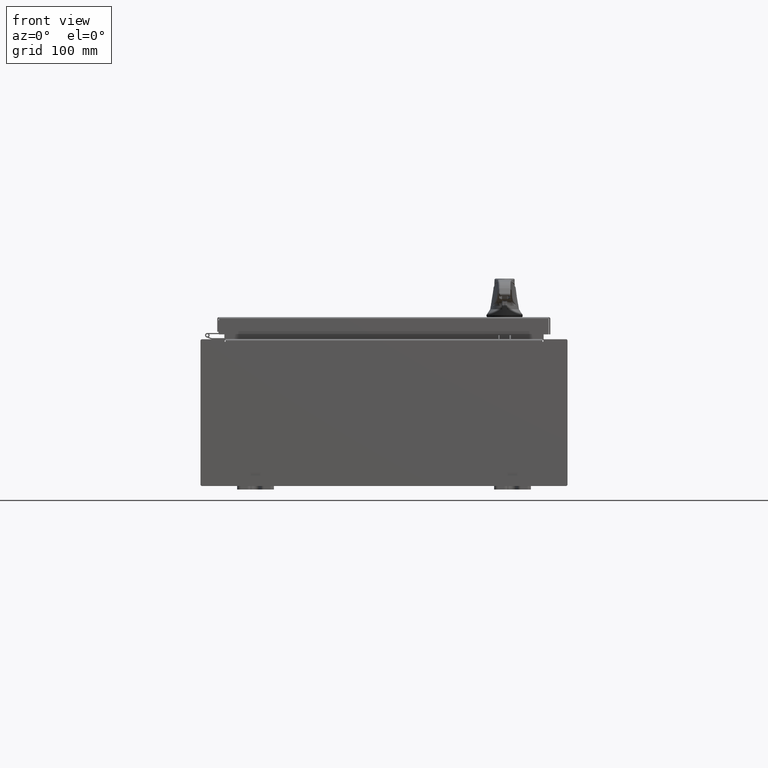
[diagram: clean part render]
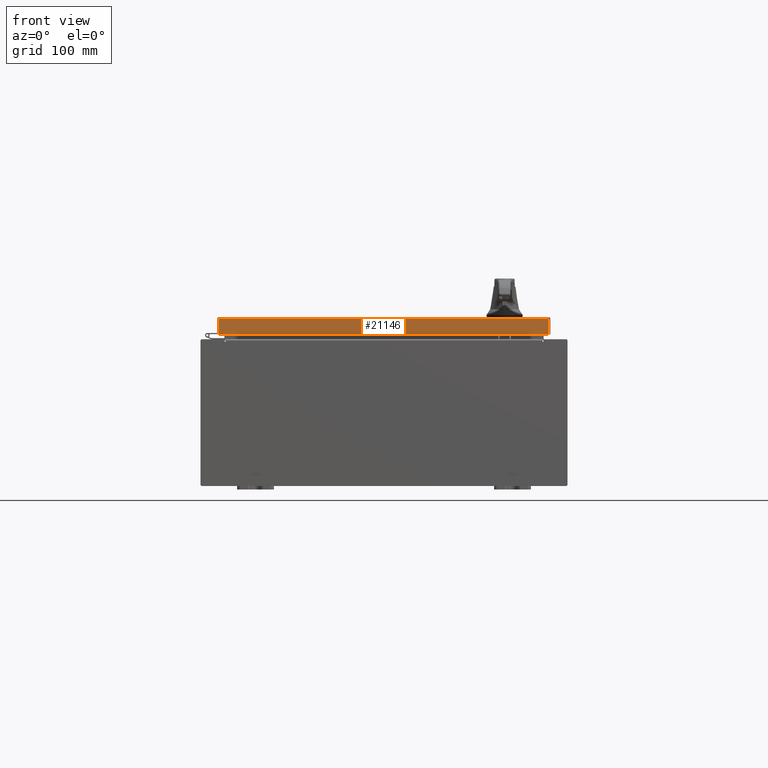
[diagram: same view with one face highlighted and labeled with its STEP entity id]
A machine part, front view. The second image highlights one B-rep face of the part: STEP entity #21146.
In plain terms, the highlighted planar face has unit normal (0, 1, -0).
Its self-contained STEP definition (entity closure, byte-faithful):
#1068 = DIRECTION ( 'NONE',  ( 1.000000000000000000, -1.203722403024567800E-016, -7.444398091725593800E-046 ) ) ;
#1636 = LINE ( 'NONE', #109436, #46887 ) ;
#1716 = EDGE_CURVE ( 'NONE', #67076, #49758, #1636, .T. ) ;
#7063 = CARTESIAN_POINT ( 'NONE',  ( -8.989157864376265300, -14.09400000000000100, -0.9376999999999976500 ) ) ;
#7913 = VECTOR ( 'NONE', #81834, 39.37007874015748100 ) ;
#9367 = AXIS2_PLACEMENT_3D ( 'NONE', #50401, #105012, #50799 ) ;
#9462 = CARTESIAN_POINT ( 'NONE',  ( 8.989157864376270600, -14.09400000000000300, -0.9376999999999997600 ) ) ;
#14542 = PLANE ( 'NONE',  #9367 ) ;
#17803 = VECTOR ( 'NONE', #64749, 39.37007874015748100 ) ;
#20748 = ORIENTED_EDGE ( 'NONE', *, *, #1716, .F. ) ;
#21146 = ADVANCED_FACE ( 'NONE', ( #108619 ), #14542, .F. ) ;
#21970 = EDGE_CURVE ( 'NONE', #49758, #71980, #41983, .T. ) ;
#28446 = ORIENTED_EDGE ( 'NONE', *, *, #21970, .F. ) ;
#34788 = LINE ( 'NONE', #63670, #7913 ) ;
#36708 = CARTESIAN_POINT ( 'NONE',  ( 9.078000000000001200, -14.09400000000000300, -0.9376999999999997600 ) ) ;
#41983 = LINE ( 'NONE', #80983, #87216 ) ;
#44617 = DIRECTION ( 'NONE',  ( 0.0000000000000000000, -2.532419924601866100E-015, -1.000000000000000000 ) ) ;
#46887 = VECTOR ( 'NONE', #1068, 39.37007874015748100 ) ;
#48103 = EDGE_CURVE ( 'NONE', #67076, #87682, #34788, .T. ) ;
#48429 = EDGE_CURVE ( 'NONE', #71980, #87682, #65855, .T. ) ;
#49758 = VERTEX_POINT ( 'NONE', #70606 ) ;
#50401 = CARTESIAN_POINT ( 'NONE',  ( -1.696526354822825600E-015, -14.09399999999999900, 3.595274007335028100E-014 ) ) ;
#50799 = DIRECTION ( 'NONE',  ( 0.0000000000000000000, 2.532419924601866100E-015, 1.000000000000000000 ) ) ;
#57621 = ORIENTED_EDGE ( 'NONE', *, *, #48103, .T. ) ;
#63670 = CARTESIAN_POINT ( 'NONE',  ( -8.989157864376265300, -14.09399999999999900, 3.595274007335028100E-014 ) ) ;
#64749 = DIRECTION ( 'NONE',  ( -1.000000000000000000, 1.203722403024570700E-016, 1.203722403024571000E-016 ) ) ;
#65855 = LINE ( 'NONE', #36708, #17803 ) ;
#67076 = VERTEX_POINT ( 'NONE', #72027 ) ;
#70606 = CARTESIAN_POINT ( 'NONE',  ( 8.989157864376256400, -14.09400000000000100, -0.08770000000000008300 ) ) ;
#71968 = EDGE_LOOP ( 'NONE', ( #20748, #57621, #112973, #28446 ) ) ;
#71980 = VERTEX_POINT ( 'NONE', #9462 ) ;
#72027 = CARTESIAN_POINT ( 'NONE',  ( -8.989157864376265300, -14.09399999999999900, -0.08770000000000008300 ) ) ;
#80983 = CARTESIAN_POINT ( 'NONE',  ( 8.989157864376270600, -14.09400000000000100, -0.07469999999999980800 ) ) ;
#81834 = DIRECTION ( 'NONE',  ( 0.0000000000000000000, -2.532419924601866100E-015, -1.000000000000000000 ) ) ;
#87216 = VECTOR ( 'NONE', #44617, 39.37007874015748100 ) ;
#87682 = VERTEX_POINT ( 'NONE', #7063 ) ;
#105012 = DIRECTION ( 'NONE',  ( 1.203722403024567800E-016, 1.000000000000000000, -2.532419924601866100E-015 ) ) ;
#108619 = FACE_OUTER_BOUND ( 'NONE', #71968, .T. ) ;
#109436 = CARTESIAN_POINT ( 'NONE',  ( 9.078000000000001200, -14.09400000000000100, -0.08770000000000008300 ) ) ;
#112973 = ORIENTED_EDGE ( 'NONE', *, *, #48429, .F. ) ;